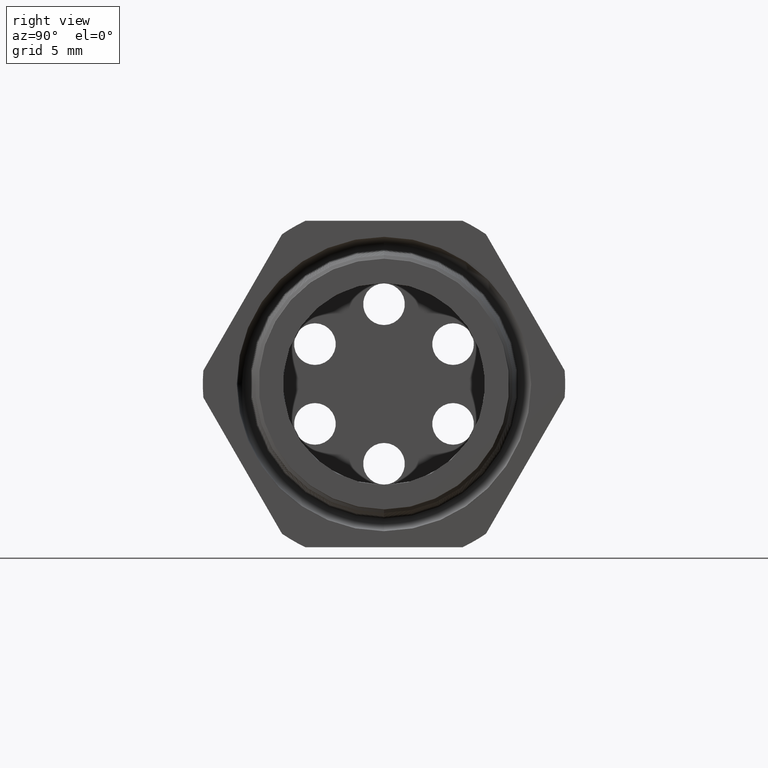
[diagram: clean part render]
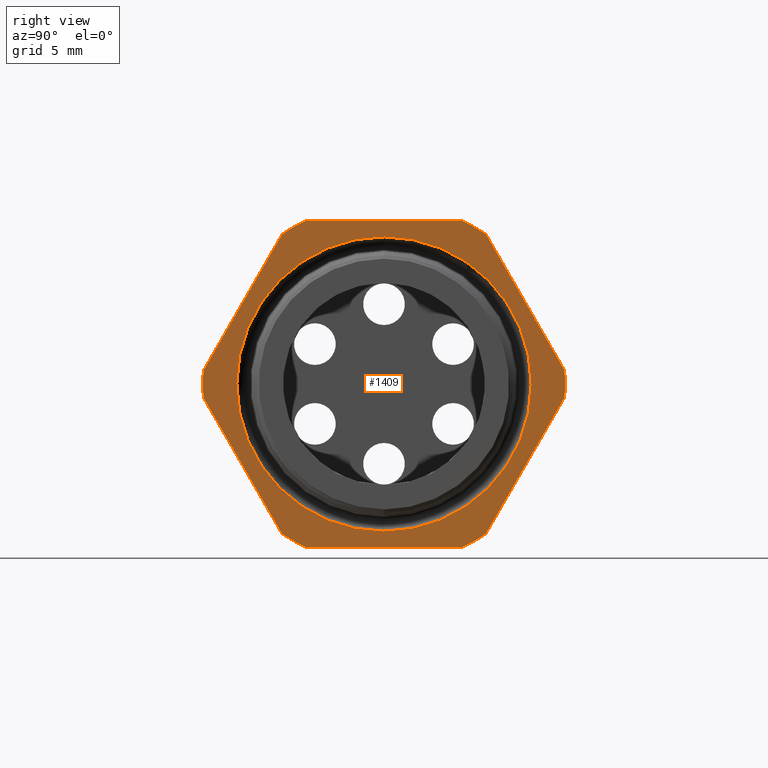
[diagram: same view with one face highlighted and labeled with its STEP entity id]
A machine part, right view. The second image highlights one B-rep face of the part: STEP entity #1409.
In plain terms, the highlighted planar face has unit normal (1, 0, 0).
Its self-contained STEP definition (entity closure, byte-faithful):
#1373 = EDGE_CURVE ( 'NONE', #1454, #1374, #4005, .T. ) ;
#1374 = VERTEX_POINT ( 'NONE', #4065 ) ;
#1375 = ORIENTED_EDGE ( 'NONE', *, *, #1376, .T. ) ;
#1376 = EDGE_CURVE ( 'NONE', #1374, #1377, #4064, .T. ) ;
#1377 = VERTEX_POINT ( 'NONE', #4059 ) ;
#1378 = ORIENTED_EDGE ( 'NONE', *, *, #1379, .T. ) ;
#1379 = EDGE_CURVE ( 'NONE', #1377, #1380, #4058, .T. ) ;
#1380 = VERTEX_POINT ( 'NONE', #4054 ) ;
#1381 = ORIENTED_EDGE ( 'NONE', *, *, #1382, .T. ) ;
#1382 = EDGE_CURVE ( 'NONE', #1380, #1383, #4053, .T. ) ;
#1383 = VERTEX_POINT ( 'NONE', #4048 ) ;
#1384 = ORIENTED_EDGE ( 'NONE', *, *, #1385, .F. ) ;
#1385 = EDGE_CURVE ( 'NONE', #2153, #2093, #4047, .T. ) ;
#1386 = ORIENTED_EDGE ( 'NONE', *, *, #2154, .F. ) ;
#1387 = EDGE_LOOP ( 'NONE', ( #1388, #1392, #1395, #1452, #1455, #1375, #1378, #1381, #1438, #1441, #1444, #1447 ) ) ;
#1388 = ORIENTED_EDGE ( 'NONE', *, *, #1389, .T. ) ;
#1389 = EDGE_CURVE ( 'NONE', #1390, #1391, #4042, .T. ) ;
#1390 = VERTEX_POINT ( 'NONE', #4038 ) ;
#1391 = VERTEX_POINT ( 'NONE', #4037 ) ;
#1392 = ORIENTED_EDGE ( 'NONE', *, *, #1393, .T. ) ;
#1393 = EDGE_CURVE ( 'NONE', #1391, #1394, #4092, .T. ) ;
#1394 = VERTEX_POINT ( 'NONE', #4088 ) ;
#1395 = ORIENTED_EDGE ( 'NONE', *, *, #1396, .T. ) ;
#1396 = EDGE_CURVE ( 'NONE', #1394, #1397, #4087, .T. ) ;
#1397 = VERTEX_POINT ( 'NONE', #4083 ) ;
#1409 = ADVANCED_FACE ( 'NONE', ( #4109, #4108 ), #4107, .T. ) ;
#1410 = EDGE_LOOP ( 'NONE', ( #1384, #1386 ) ) ;
#1438 = ORIENTED_EDGE ( 'NONE', *, *, #1439, .T. ) ;
#1439 = EDGE_CURVE ( 'NONE', #1383, #1440, #4181, .T. ) ;
#1440 = VERTEX_POINT ( 'NONE', #4177 ) ;
#1441 = ORIENTED_EDGE ( 'NONE', *, *, #1442, .T. ) ;
#1442 = EDGE_CURVE ( 'NONE', #1440, #1443, #4176, .T. ) ;
#1443 = VERTEX_POINT ( 'NONE', #4171 ) ;
#1444 = ORIENTED_EDGE ( 'NONE', *, *, #1445, .T. ) ;
#1445 = EDGE_CURVE ( 'NONE', #1443, #1446, #4170, .T. ) ;
#1446 = VERTEX_POINT ( 'NONE', #4166 ) ;
#1447 = ORIENTED_EDGE ( 'NONE', *, *, #1448, .T. ) ;
#1448 = EDGE_CURVE ( 'NONE', #1446, #1390, #4165, .T. ) ;
#1452 = ORIENTED_EDGE ( 'NONE', *, *, #1453, .T. ) ;
#1453 = EDGE_CURVE ( 'NONE', #1397, #1454, #4219, .T. ) ;
#1454 = VERTEX_POINT ( 'NONE', #4211 ) ;
#1455 = ORIENTED_EDGE ( 'NONE', *, *, #1373, .T. ) ;
#2093 = VERTEX_POINT ( 'NONE', #5060 ) ;
#2153 = VERTEX_POINT ( 'NONE', #5210 ) ;
#2154 = EDGE_CURVE ( 'NONE', #2093, #2153, #5209, .T. ) ;
#4002 = DIRECTION ( 'NONE',  ( 0.0000000000000000000, -1.000000000000000000, 0.0000000000000000000 ) ) ;
#4003 = VECTOR ( 'NONE', #4002, 39.37007874015748100 ) ;
#4004 = CARTESIAN_POINT ( 'NONE',  ( -0.3100000000000000000, 0.9399999999999999500, 0.4699999999999999200 ) ) ;
#4005 = LINE ( 'NONE', #4004, #4003 ) ;
#4036 = CARTESIAN_POINT ( 'NONE',  ( -0.3100000000000000000, 0.0000000000000000000, 0.0000000000000000000 ) ) ;
#4037 = CARTESIAN_POINT ( 'NONE',  ( -0.3100000000000000000, 0.5202473208008777700, -0.03890520787129494300 ) ) ;
#4038 = CARTESIAN_POINT ( 'NONE',  ( -0.3100000000000000000, 0.2938165587564948700, -0.4310947921287048800 ) ) ;
#4039 = DIRECTION ( 'NONE',  ( 0.0000000000000000000, 0.4999999999999998300, 0.8660254037844388200 ) ) ;
#4040 = VECTOR ( 'NONE', #4039, 39.37007874015748100 ) ;
#4041 = CARTESIAN_POINT ( 'NONE',  ( -0.3100000000000000000, 0.6420319397786861100, 0.1720319397786860800 ) ) ;
#4042 = LINE ( 'NONE', #4041, #4040 ) ;
#4043 = DIRECTION ( 'NONE',  ( 0.0000000000000000000, 0.0000000000000000000, -1.000000000000000000 ) ) ;
#4044 = DIRECTION ( 'NONE',  ( 1.000000000000000000, 0.0000000000000000000, 0.0000000000000000000 ) ) ;
#4045 = CARTESIAN_POINT ( 'NONE',  ( -0.3100000000000000000, 0.0000000000000000000, 0.0000000000000000000 ) ) ;
#4046 = AXIS2_PLACEMENT_3D ( 'NONE', #4045, #4044, #4043 ) ;
#4047 = CIRCLE ( 'NONE', #4046, 0.4238480351359016900 ) ;
#4048 = CARTESIAN_POINT ( 'NONE',  ( -0.3100000000000000000, -0.5202473208008777700, -0.03890520787129495000 ) ) ;
#4049 = DIRECTION ( 'NONE',  ( 0.0000000000000000000, 0.0000000000000000000, -1.000000000000000000 ) ) ;
#4050 = DIRECTION ( 'NONE',  ( 1.000000000000000000, 0.0000000000000000000, 0.0000000000000000000 ) ) ;
#4051 = CARTESIAN_POINT ( 'NONE',  ( -0.3100000000000000000, 0.0000000000000000000, 0.0000000000000000000 ) ) ;
#4052 = AXIS2_PLACEMENT_3D ( 'NONE', #4051, #4050, #4049 ) ;
#4053 = CIRCLE ( 'NONE', #4052, 0.5217000000000000500 ) ;
#4054 = CARTESIAN_POINT ( 'NONE',  ( -0.3100000000000000000, -0.5202473208008777700, 0.03890520787129464500 ) ) ;
#4055 = DIRECTION ( 'NONE',  ( 0.0000000000000000000, -0.4999999999999998300, -0.8660254037844388200 ) ) ;
#4056 = VECTOR ( 'NONE', #4055, 39.37007874015748100 ) ;
#4057 = CARTESIAN_POINT ( 'NONE',  ( -0.3100000000000000000, -0.1720319397786862800, 0.6420319397786858900 ) ) ;
#4058 = LINE ( 'NONE', #4057, #4056 ) ;
#4059 = CARTESIAN_POINT ( 'NONE',  ( -0.3100000000000000000, -0.2938165587564945900, 0.4310947921287050500 ) ) ;
#4060 = DIRECTION ( 'NONE',  ( 0.0000000000000000000, 0.0000000000000000000, -1.000000000000000000 ) ) ;
#4061 = DIRECTION ( 'NONE',  ( 1.000000000000000000, 0.0000000000000000000, 0.0000000000000000000 ) ) ;
#4062 = CARTESIAN_POINT ( 'NONE',  ( -0.3100000000000000000, 0.0000000000000000000, 0.0000000000000000000 ) ) ;
#4063 = AXIS2_PLACEMENT_3D ( 'NONE', #4062, #4061, #4060 ) ;
#4064 = CIRCLE ( 'NONE', #4063, 0.5217000000000000500 ) ;
#4065 = CARTESIAN_POINT ( 'NONE',  ( -0.3100000000000000000, -0.2264307620443835300, 0.4699999999999997000 ) ) ;
#4083 = CARTESIAN_POINT ( 'NONE',  ( -0.3100000000000000000, 0.2938165587564947600, 0.4310947921287048800 ) ) ;
#4084 = DIRECTION ( 'NONE',  ( 0.0000000000000000000, -0.5000000000000001100, 0.8660254037844384900 ) ) ;
#4085 = VECTOR ( 'NONE', #4084, 39.37007874015748900 ) ;
#4086 = CARTESIAN_POINT ( 'NONE',  ( -0.3100000000000000000, 0.6420319397786862200, -0.1720319397786861700 ) ) ;
#4087 = LINE ( 'NONE', #4086, #4085 ) ;
#4088 = CARTESIAN_POINT ( 'NONE',  ( -0.3100000000000000000, 0.5202473208008776600, 0.03890520787129531800 ) ) ;
#4089 = DIRECTION ( 'NONE',  ( 0.0000000000000000000, 0.0000000000000000000, -1.000000000000000000 ) ) ;
#4090 = DIRECTION ( 'NONE',  ( 1.000000000000000000, 0.0000000000000000000, 0.0000000000000000000 ) ) ;
#4091 = AXIS2_PLACEMENT_3D ( 'NONE', #4036, #4090, #4089 ) ;
#4092 = CIRCLE ( 'NONE', #4091, 0.5217000000000000500 ) ;
#4103 = DIRECTION ( 'NONE',  ( 0.0000000000000000000, 0.0000000000000000000, -1.000000000000000000 ) ) ;
#4104 = DIRECTION ( 'NONE',  ( 1.000000000000000000, 0.0000000000000000000, 0.0000000000000000000 ) ) ;
#4105 = CARTESIAN_POINT ( 'NONE',  ( -0.3100000000000000000, 0.9399999999999999500, 0.0000000000000000000 ) ) ;
#4106 = AXIS2_PLACEMENT_3D ( 'NONE', #4105, #4104, #4103 ) ;
#4107 = PLANE ( 'NONE',  #4106 ) ;
#4108 = FACE_OUTER_BOUND ( 'NONE', #1387, .T. ) ;
#4109 = FACE_BOUND ( 'NONE', #1410, .T. ) ;
#4161 = DIRECTION ( 'NONE',  ( 0.0000000000000000000, 0.0000000000000000000, -1.000000000000000000 ) ) ;
#4162 = DIRECTION ( 'NONE',  ( 1.000000000000000000, 0.0000000000000000000, 0.0000000000000000000 ) ) ;
#4163 = CARTESIAN_POINT ( 'NONE',  ( -0.3100000000000000000, 0.0000000000000000000, 0.0000000000000000000 ) ) ;
#4164 = AXIS2_PLACEMENT_3D ( 'NONE', #4163, #4162, #4161 ) ;
#4165 = CIRCLE ( 'NONE', #4164, 0.5217000000000000500 ) ;
#4166 = CARTESIAN_POINT ( 'NONE',  ( -0.3100000000000000000, 0.2264307620443831200, -0.4700000000000000300 ) ) ;
#4167 = DIRECTION ( 'NONE',  ( 0.0000000000000000000, 1.000000000000000000, 0.0000000000000000000 ) ) ;
#4168 = VECTOR ( 'NONE', #4167, 39.37007874015748100 ) ;
#4169 = CARTESIAN_POINT ( 'NONE',  ( -0.3100000000000000000, 0.9399999999999999500, -0.4700000000000000300 ) ) ;
#4170 = LINE ( 'NONE', #4169, #4168 ) ;
#4171 = CARTESIAN_POINT ( 'NONE',  ( -0.3100000000000000000, -0.2264307620443830900, -0.4700000000000000300 ) ) ;
#4172 = DIRECTION ( 'NONE',  ( 0.0000000000000000000, 0.0000000000000000000, -1.000000000000000000 ) ) ;
#4173 = DIRECTION ( 'NONE',  ( 1.000000000000000000, 0.0000000000000000000, 0.0000000000000000000 ) ) ;
#4174 = CARTESIAN_POINT ( 'NONE',  ( -0.3100000000000000000, 0.0000000000000000000, 0.0000000000000000000 ) ) ;
#4175 = AXIS2_PLACEMENT_3D ( 'NONE', #4174, #4173, #4172 ) ;
#4176 = CIRCLE ( 'NONE', #4175, 0.5217000000000000500 ) ;
#4177 = CARTESIAN_POINT ( 'NONE',  ( -0.3100000000000000000, -0.2938165587564942600, -0.4310947921287053300 ) ) ;
#4178 = DIRECTION ( 'NONE',  ( 0.0000000000000000000, 0.5000000000000002200, -0.8660254037844386000 ) ) ;
#4179 = VECTOR ( 'NONE', #4178, 39.37007874015747400 ) ;
#4180 = CARTESIAN_POINT ( 'NONE',  ( -0.3100000000000000000, -0.1720319397786861700, -0.6420319397786863300 ) ) ;
#4181 = LINE ( 'NONE', #4180, #4179 ) ;
#4211 = CARTESIAN_POINT ( 'NONE',  ( -0.3100000000000000000, 0.2264307620443832800, 0.4699999999999999200 ) ) ;
#4212 = DIRECTION ( 'NONE',  ( 0.0000000000000000000, 0.0000000000000000000, -1.000000000000000000 ) ) ;
#4213 = DIRECTION ( 'NONE',  ( 1.000000000000000000, 0.0000000000000000000, 0.0000000000000000000 ) ) ;
#4214 = CARTESIAN_POINT ( 'NONE',  ( -0.3100000000000000000, 0.0000000000000000000, 0.0000000000000000000 ) ) ;
#4215 = AXIS2_PLACEMENT_3D ( 'NONE', #4214, #4213, #4212 ) ;
#4219 = CIRCLE ( 'NONE', #4215, 0.5217000000000000500 ) ;
#5060 = CARTESIAN_POINT ( 'NONE',  ( -0.3100000000000000000, 5.190641395540770100E-017, 0.4238480351359016900 ) ) ;
#5205 = DIRECTION ( 'NONE',  ( 0.0000000000000000000, 0.0000000000000000000, -1.000000000000000000 ) ) ;
#5206 = DIRECTION ( 'NONE',  ( 1.000000000000000000, 0.0000000000000000000, 0.0000000000000000000 ) ) ;
#5207 = CARTESIAN_POINT ( 'NONE',  ( -0.3100000000000000000, 0.0000000000000000000, 0.0000000000000000000 ) ) ;
#5208 = AXIS2_PLACEMENT_3D ( 'NONE', #5207, #5206, #5205 ) ;
#5209 = CIRCLE ( 'NONE', #5208, 0.4238480351359016900 ) ;
#5210 = CARTESIAN_POINT ( 'NONE',  ( -0.3100000000000000000, 0.0000000000000000000, -0.4238480351359016900 ) ) ;